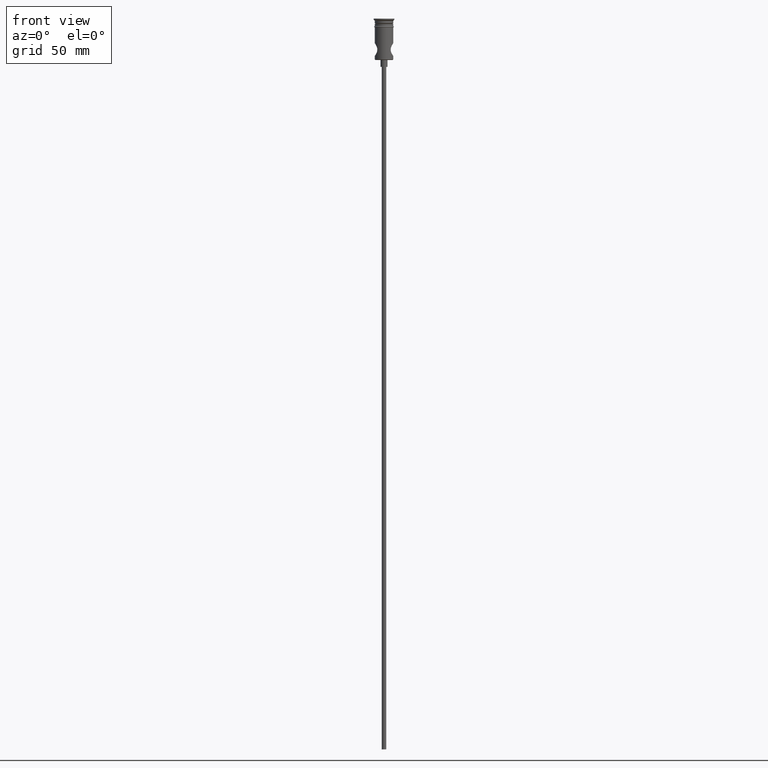
[diagram: clean part render]
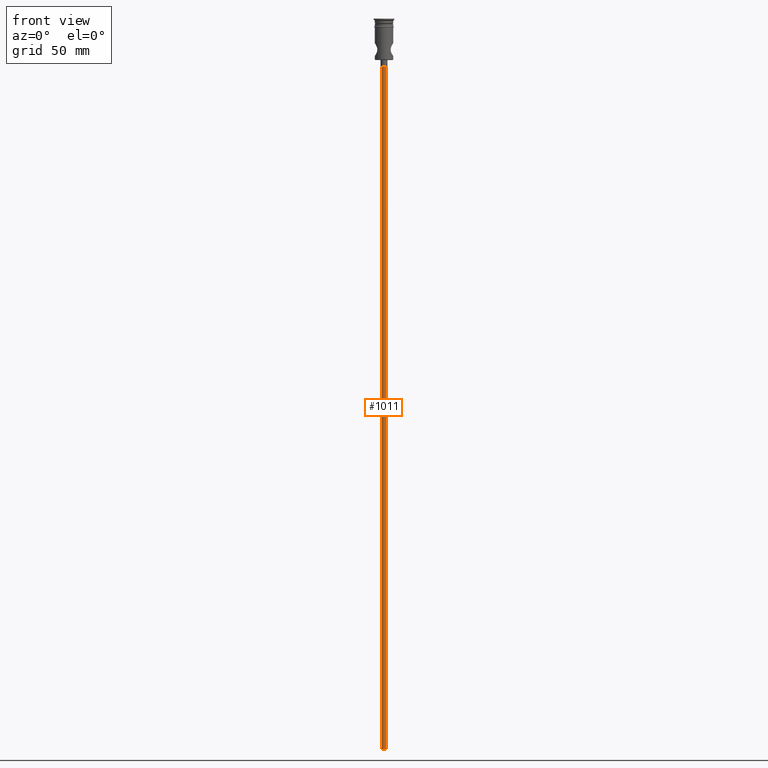
[diagram: same view with one face highlighted and labeled with its STEP entity id]
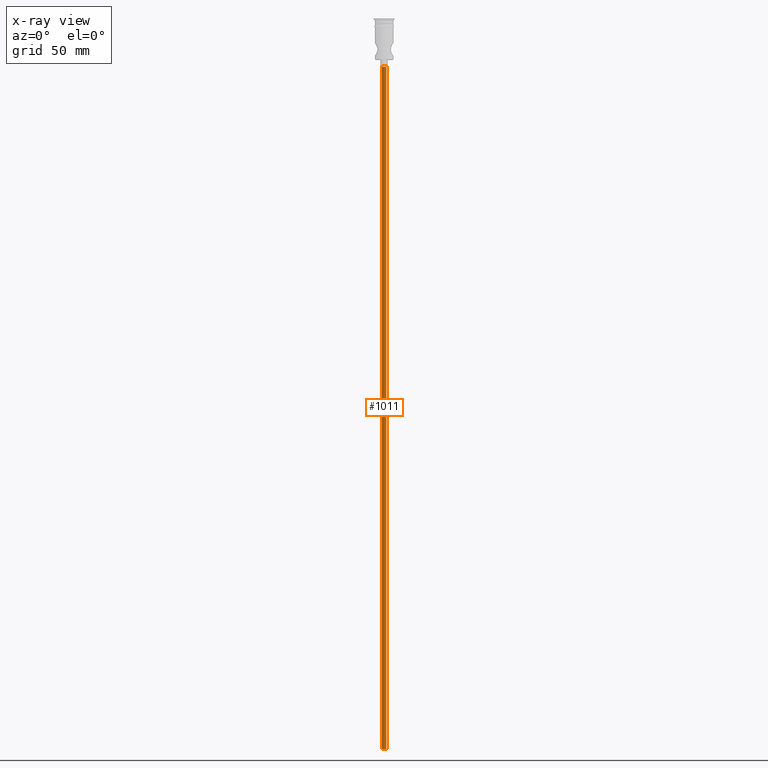
[diagram: x-ray of the same camera — body ghosted, the highlighted face saturated]
A machine part, front view. The second image highlights one B-rep face of the part: STEP entity #1011.
The next image is the same camera in x-ray: the body ghosted, the highlighted face saturated — about 0% of this face is hidden behind the body in this view.
In plain terms, the highlighted cylindrical surface (edge-blend (fillet) strip) has radius 1 mm, axis along (-0, -0, 1).
Its self-contained STEP definition (entity closure, byte-faithful):
#17 = CARTESIAN_POINT ( 'NONE',  ( -0.9999999999999997780, 1.224646799147352961E-16, -318.0000000000000000 ) ) ;
#72 = CARTESIAN_POINT ( 'NONE',  ( -0.9999999999999997780, 1.224646799147352961E-16, -318.0000000000000000 ) ) ;
#73 = EDGE_LOOP ( 'NONE', ( #848, #1333, #131, #1173 ) ) ;
#131 = ORIENTED_EDGE ( 'NONE', *, *, #1270, .T. ) ;
#154 = LINE ( 'NONE', #72, #885 ) ;
#157 = VERTEX_POINT ( 'NONE', #267 ) ;
#174 = CARTESIAN_POINT ( 'NONE',  ( 0.9999999999999997780, 0.000000000000000000, -318.0000000000000000 ) ) ;
#176 = CARTESIAN_POINT ( 'NONE',  ( 0.000000000000000000, 0.000000000000000000, -318.0000000000000000 ) ) ;
#262 = DIRECTION ( 'NONE',  ( -1.000000000000000000, 0.000000000000000000, 0.000000000000000000 ) ) ;
#267 = CARTESIAN_POINT ( 'NONE',  ( -0.9999999999999997780, 1.224646799147352961E-16, -20.99999999999999645 ) ) ;
#358 = DIRECTION ( 'NONE',  ( 0.000000000000000000, 0.000000000000000000, -1.000000000000000000 ) ) ;
#414 = CARTESIAN_POINT ( 'NONE',  ( 0.000000000000000000, 0.000000000000000000, -318.0000000000000000 ) ) ;
#454 = VECTOR ( 'NONE', #491, 1000.000000000000000 ) ;
#465 = EDGE_CURVE ( 'NONE', #706, #157, #154, .T. ) ;
#480 = VERTEX_POINT ( 'NONE', #594 ) ;
#491 = DIRECTION ( 'NONE',  ( -0.000000000000000000, -0.000000000000000000, 1.000000000000000000 ) ) ;
#495 = DIRECTION ( 'NONE',  ( -0.000000000000000000, -0.000000000000000000, 1.000000000000000000 ) ) ;
#534 = FACE_OUTER_BOUND ( 'NONE', #73, .T. ) ;
#547 = CIRCLE ( 'NONE', #1067, 0.9999999999999997780 ) ;
#594 = CARTESIAN_POINT ( 'NONE',  ( 0.9999999999999997780, 0.000000000000000000, -318.0000000000000000 ) ) ;
#706 = VERTEX_POINT ( 'NONE', #17 ) ;
#794 = DIRECTION ( 'NONE',  ( -1.000000000000000000, 0.000000000000000000, 0.000000000000000000 ) ) ;
#805 = LINE ( 'NONE', #174, #454 ) ;
#848 = ORIENTED_EDGE ( 'NONE', *, *, #465, .F. ) ;
#859 = DIRECTION ( 'NONE',  ( 1.000000000000000000, 0.000000000000000000, 0.000000000000000000 ) ) ;
#885 = VECTOR ( 'NONE', #495, 1000.000000000000000 ) ;
#897 = DIRECTION ( 'NONE',  ( 0.000000000000000000, 0.000000000000000000, -1.000000000000000000 ) ) ;
#902 = CARTESIAN_POINT ( 'NONE',  ( 0.9999999999999997780, 0.000000000000000000, -20.99999999999999645 ) ) ;
#911 = EDGE_CURVE ( 'NONE', #480, #706, #1222, .T. ) ;
#945 = VERTEX_POINT ( 'NONE', #902 ) ;
#950 = EDGE_CURVE ( 'NONE', #945, #157, #547, .T. ) ;
#954 = CYLINDRICAL_SURFACE ( 'NONE', #1152, 0.9999999999999997780 ) ;
#1011 = ADVANCED_FACE ( 'NONE', ( #534 ), #954, .T. ) ;
#1067 = AXIS2_PLACEMENT_3D ( 'NONE', #1355, #358, #262 ) ;
#1152 = AXIS2_PLACEMENT_3D ( 'NONE', #414, #1192, #859 ) ;
#1173 = ORIENTED_EDGE ( 'NONE', *, *, #950, .T. ) ;
#1192 = DIRECTION ( 'NONE',  ( -0.000000000000000000, -0.000000000000000000, 1.000000000000000000 ) ) ;
#1222 = CIRCLE ( 'NONE', #1385, 0.9999999999999997780 ) ;
#1270 = EDGE_CURVE ( 'NONE', #480, #945, #805, .T. ) ;
#1333 = ORIENTED_EDGE ( 'NONE', *, *, #911, .F. ) ;
#1355 = CARTESIAN_POINT ( 'NONE',  ( 0.000000000000000000, 0.000000000000000000, -20.99999999999999645 ) ) ;
#1385 = AXIS2_PLACEMENT_3D ( 'NONE', #176, #897, #794 ) ;